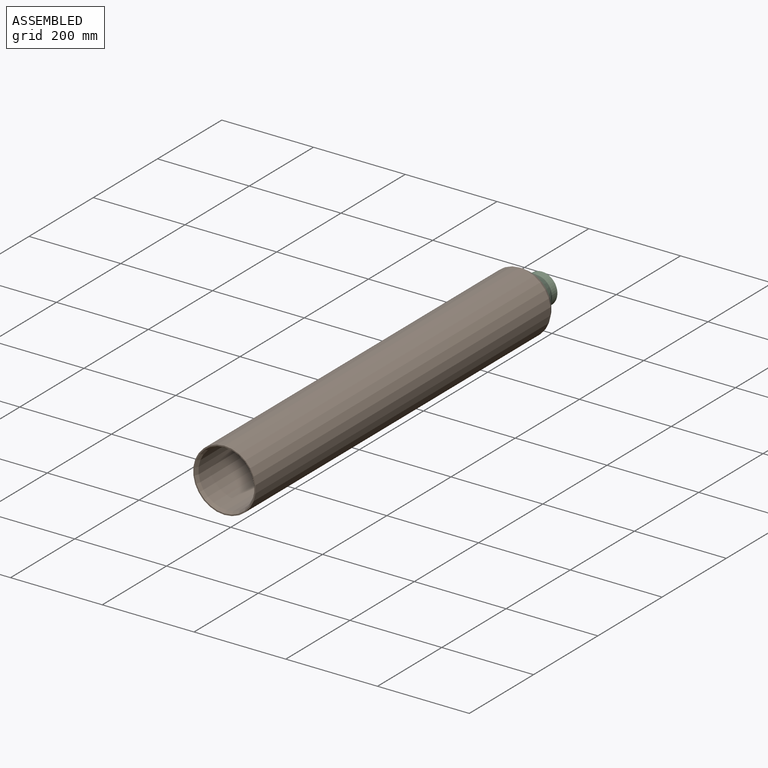
[diagram: assembled view]
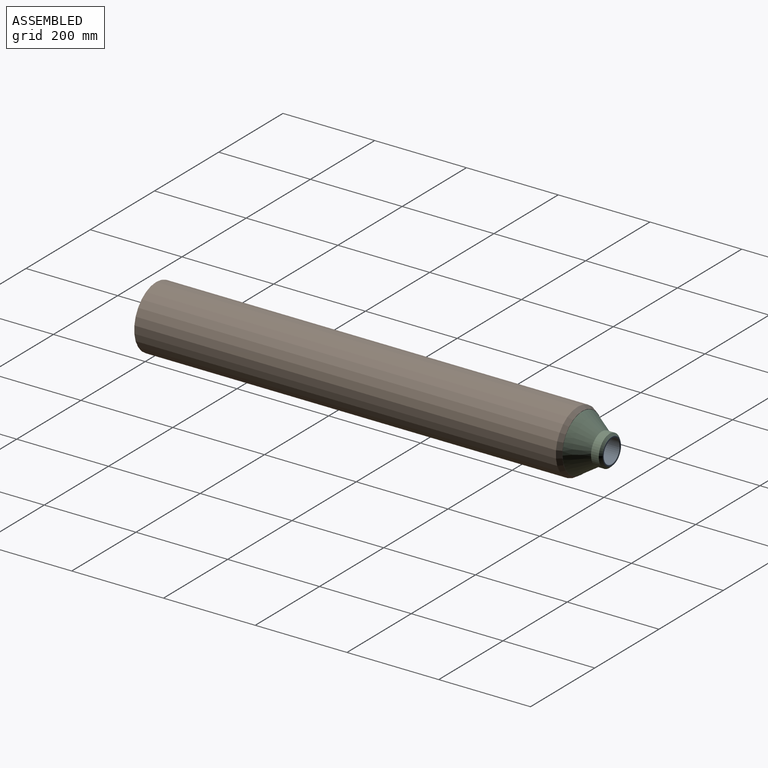
[diagram: assembled view, second angle]
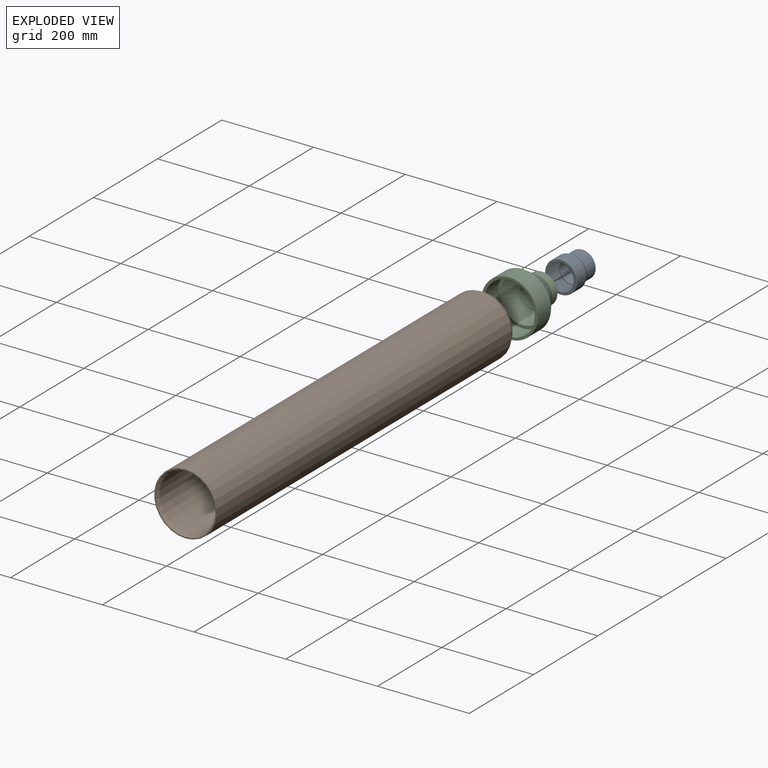
[diagram: exploded view]
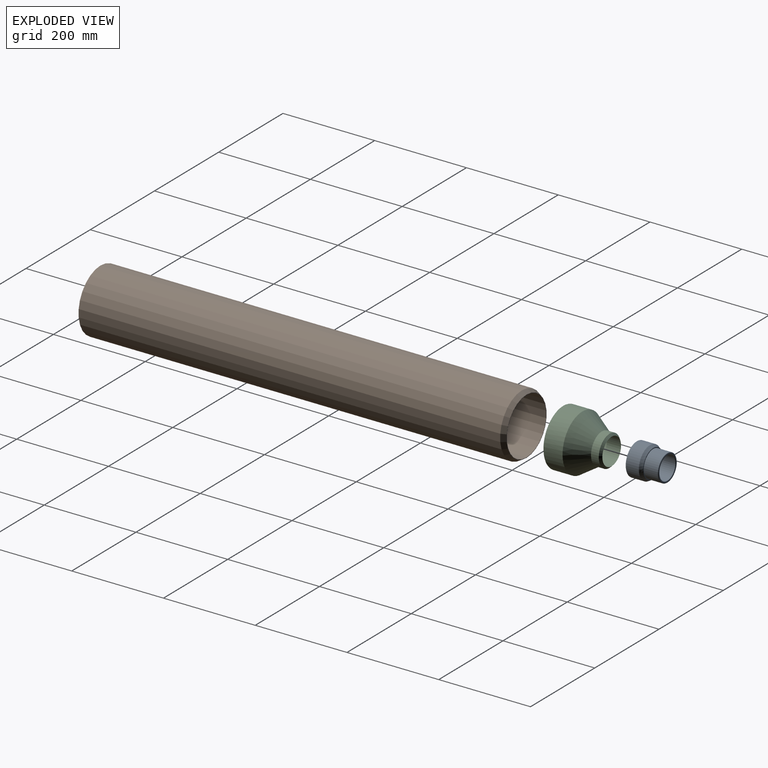
[diagram: exploded view, second angle]
ASSEMBLY  parts=3 mates=2
PART A: 42 faces, bbox 75.4x67.4x75.4 mm
  f0: cone r=29.1mm half-angle=60deg, axis (0,1,0), area 354.8mm2, adj f1,f37
  f1: plane 67.68x67.68mm, normal (0,1,0), area 937.2mm2, adj f0,f38
  f2: cylinder r=34.84mm len=69.68mm, axis (0,-1,0), area 6144mm2, adj f38,f41
  f3: plane 61.68x61.68mm, normal (0,-1,0), area 327.7mm2, adj f4,f41
  f4: cylinder r=29.1mm len=58.2mm, axis (0,-1,0), area 5559.3mm2, adj f3,f39
  f5: plane 56.2x56.2mm, normal (0,-1,0), area 356.9mm2, adj f39,f40
  f6: cylinder r=25mm len=50mm, axis (0,-1,0), area 5497mm2, adj f7,f40
  f7: plane 53.33x53.33mm, normal (0,1,0), area 270.5mm2, adj f6,f8
  f8: cone r=29.1mm half-angle=60deg, axis (0,1,0), area 492.3mm2, adj f7,f9
  f9: cone r=27.37mm half-angle=60deg, axis (0,-1,0), area 354.8mm2, adj f8,f10
  f10: cone r=29.1mm half-angle=60deg, axis (0,1,0), area 354.8mm2, adj f9,f11
  f11: cone r=27.37mm half-angle=60deg, axis (0,-1,0), area 354.8mm2, adj f10,f12
  f12: cone r=29.1mm half-angle=60deg, axis (0,1,0), area 354.8mm2, adj f11,f13
  f13: cone r=27.37mm half-angle=60deg, axis (0,-1,0), area 354.8mm2, adj f12,f14
  f14: cone r=29.1mm half-angle=60deg, axis (0,1,0), area 354.8mm2, adj f13,f15
  f15: cone r=27.37mm half-angle=60deg, axis (0,-1,0), area 354.8mm2, adj f14,f16
  f16: cone r=29.1mm half-angle=60deg, axis (0,1,0), area 354.8mm2, adj f15,f17
  f17: cone r=27.37mm half-angle=60deg, axis (0,-1,0), area 354.8mm2, adj f16,f18
  f18: cone r=29.1mm half-angle=60deg, axis (0,1,0), area 354.8mm2, adj f17,f19
  f19: cone r=27.37mm half-angle=60deg, axis (0,-1,0), area 354.8mm2, adj f18,f20
  f20: cone r=29.1mm half-angle=60deg, axis (0,1,0), area 354.8mm2, adj f19,f21
  f21: cone r=27.37mm half-angle=60deg, axis (0,-1,0), area 354.8mm2, adj f20,f22
  f22: cone r=29.1mm half-angle=60deg, axis (0,1,0), area 354.8mm2, adj f21,f23
  f23: cone r=27.37mm half-angle=60deg, axis (0,-1,0), area 354.8mm2, adj f22,f24
  f24: cone r=29.1mm half-angle=60deg, axis (0,1,0), area 354.8mm2, adj f23,f25
  f25: cone r=27.37mm half-angle=60deg, axis (0,-1,0), area 354.8mm2, adj f24,f26
  f26: cone r=29.1mm half-angle=60deg, axis (0,1,0), area 354.8mm2, adj f25,f27
  f27: cone r=27.37mm half-angle=60deg, axis (0,-1,0), area 354.8mm2, adj f26,f28
  f28: cone r=29.1mm half-angle=60deg, axis (0,1,0), area 354.8mm2, adj f27,f29
  f29: cone r=27.37mm half-angle=60deg, axis (0,-1,0), area 354.8mm2, adj f28,f30
  f30: cone r=29.1mm half-angle=60deg, axis (0,1,0), area 354.8mm2, adj f29,f31
  f31: cone r=27.37mm half-angle=60deg, axis (0,-1,0), area 354.8mm2, adj f30,f32
  f32: cone r=29.1mm half-angle=60deg, axis (0,1,0), area 354.8mm2, adj f31,f33
  f33: cone r=27.37mm half-angle=60deg, axis (0,-1,0), area 354.8mm2, adj f32,f34
  f34: cone r=29.1mm half-angle=60deg, axis (0,1,0), area 354.8mm2, adj f33,f35
  f35: cone r=27.37mm half-angle=60deg, axis (0,-1,0), area 354.8mm2, adj f34,f36
  f36: cone r=29.1mm half-angle=60deg, axis (0,1,0), area 354.8mm2, adj f35,f37
  f37: cone r=27.37mm half-angle=60deg, axis (0,-1,0), area 354.8mm2, adj f0,f36
  f38: torus R=33.84mm, axis (0,-1,0), area 340.3mm2, adj f1,f2
  f39: torus R=28.1mm, axis (0,1,0), area 283.6mm2, adj f4,f5
  f40: torus R=26mm, axis (0,1,0), area 250.3mm2, adj f5,f6
  f41: cone r=30.84mm half-angle=30deg, axis (0,1,0), area 1650.7mm2, adj f2,f3
PART B: 6 faces, bbox 136.3x928.9x136.3 mm
  f0: plane 136.3x136.3mm, normal (0,-1,0), area 1133.2mm2, adj f2,f4
  f1: plane 124.75x124.75mm, normal (0,1,0), area 360.4mm2, adj f3,f5
  f2: cylinder r=68.15mm len=918.93mm, axis (0,1,0), area 393483.9mm2, adj f0,f5
  f3: cylinder r=61.45mm len=922mm, axis (0,1,0), area 355985.5mm2, adj f1,f4
  f4: cone r=65.45mm half-angle=30deg, axis (0,-1,0), area 3189.3mm2, adj f0,f3
  f5: cone r=68.15mm half-angle=30deg, axis (0,-1,0), area 4735mm2, adj f1,f2
PART C: 14 faces, bbox 133.4x106.1x133.4 mm
  f0: cylinder r=29.1mm len=58.2mm, axis (0,1,0), area 5669mm2, adj f10,f13
  f1: cylinder r=33.7mm len=67.4mm, axis (0,1,0), area 3582.6mm2, adj f2,f13
  f2: cone r=33.7mm half-angle=33.1deg, axis (0,-1,0), area 15208.4mm2, adj f1,f12
  f3: torus R=60.63mm, axis (0,-1,0), area 368.9mm2, adj f4,f12
  f4: plane 121.26x121.26mm, normal (0,-1,0), area 1650.7mm2, adj f3,f11
  f5: cylinder r=55.13mm len=110.26mm, axis (0,1,0), area 13942.3mm2, adj f6,f11
  f6: plane 110.26x110.26mm, normal (0,-1,0), area 2118.8mm2, adj f5,f7
  f7: cone r=48.63mm half-angle=33.1deg, axis (0,-1,0), area 1181.8mm2, adj f6,f8
  f8: cone r=46.47mm half-angle=56.9deg, axis (0,1,0), area 1159.9mm2, adj f7,f9
  f9: cone r=49.69mm half-angle=33.1deg, axis (0,-1,0), area 8229.2mm2, adj f8,f10
  f10: cone r=32.26mm half-angle=62.2deg, axis (0,-1,0), area 687.6mm2, adj f0,f9
  f11: torus R=56.13mm, axis (0,-1,0), area 547.7mm2, adj f4,f5
  f12: cylinder r=61.45mm len=122.9mm, axis (0,-1,0), area 16034.4mm2, adj f2,f3
  f13: cone r=28.7mm half-angle=45deg, axis (0,-1,0), area 1283.5mm2, adj f0,f1
PLACE A rot(axis=(1,0,0),180deg) t=(-220.46,168.32,-126.4)mm
PLACE B t=(-220.46,138.45,-126.4)mm
PLACE C t=(-220.46,96.49,-126.4)mm
MATE fastened C.f0 <-> B.f3  axis (0,-1,0) through (-220.46,138.45,-126.4)mm
MATE fastened A.f0 <-> C.f0  axis (0,1,0) through (-220.46,171.61,-126.4)mm
